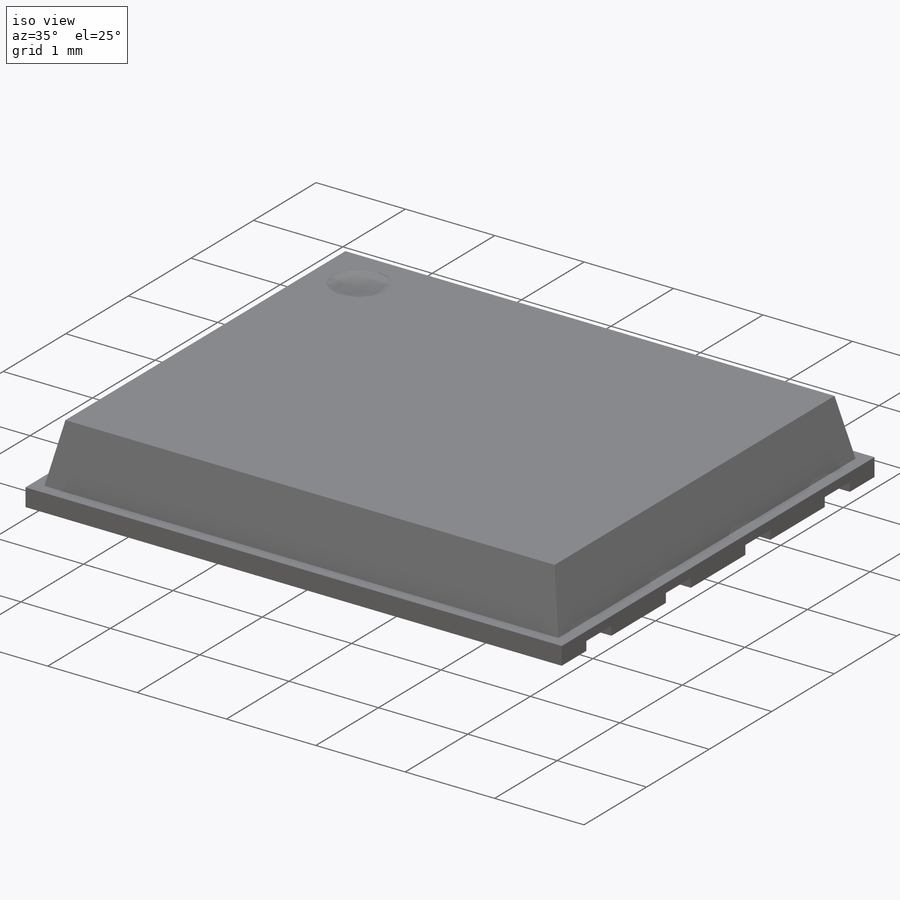
[diagram: iso view]
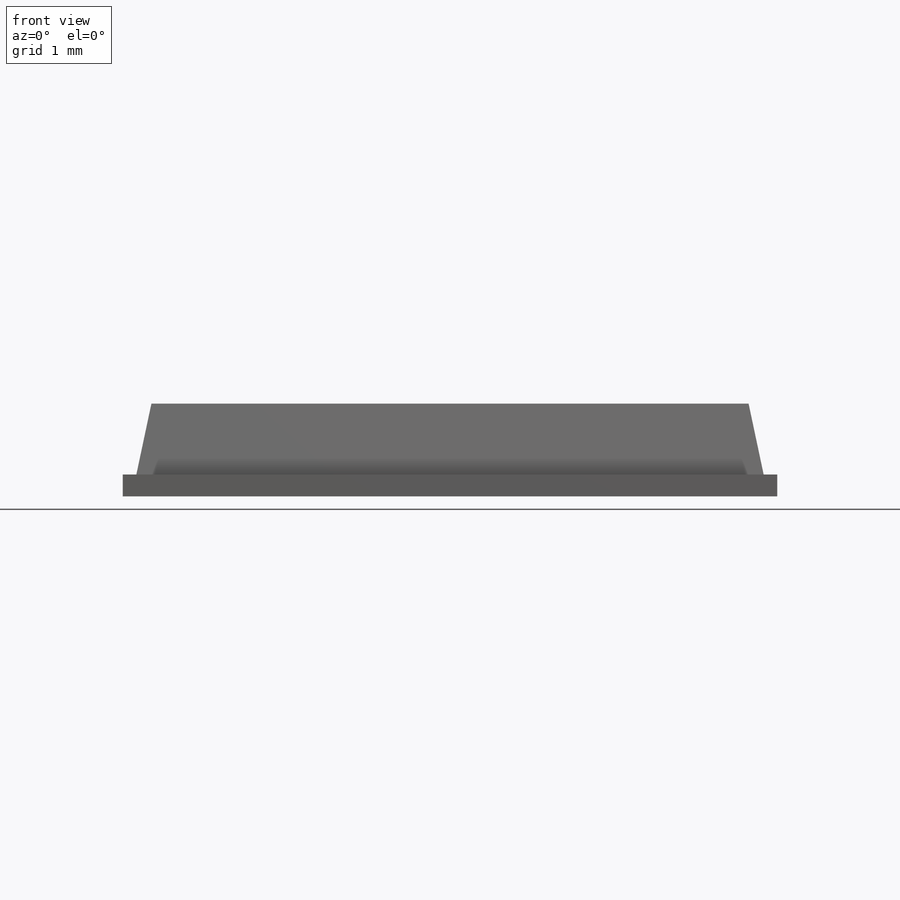
[diagram: front view]
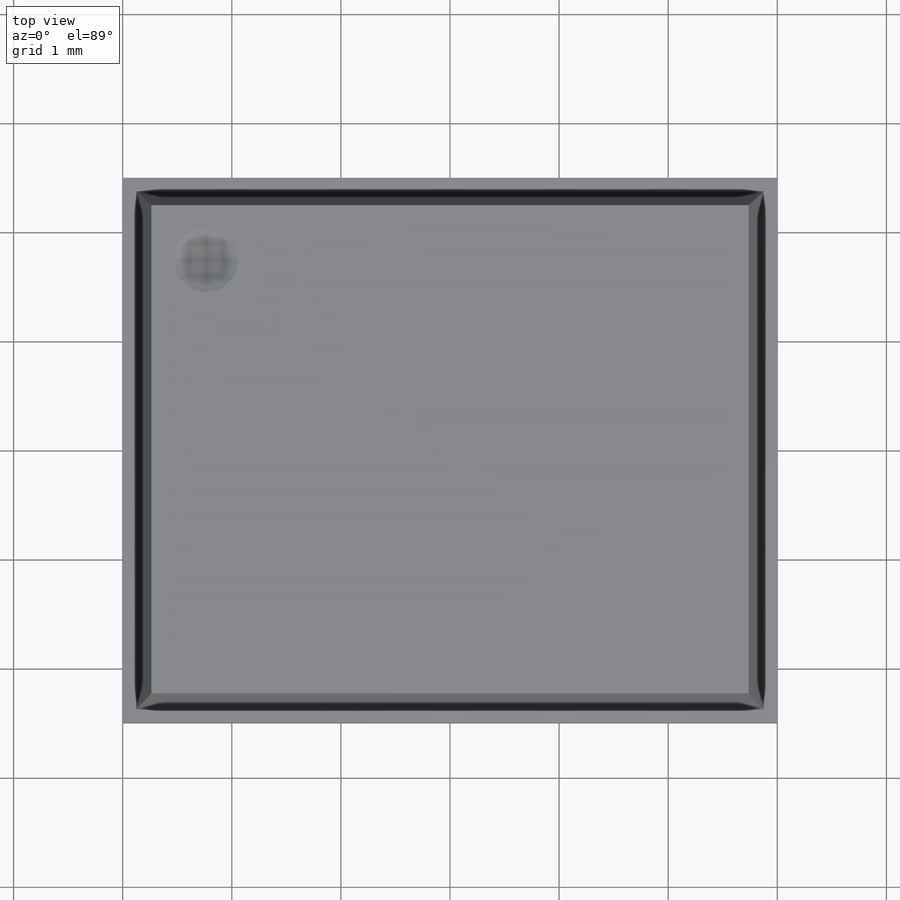
[diagram: top view]
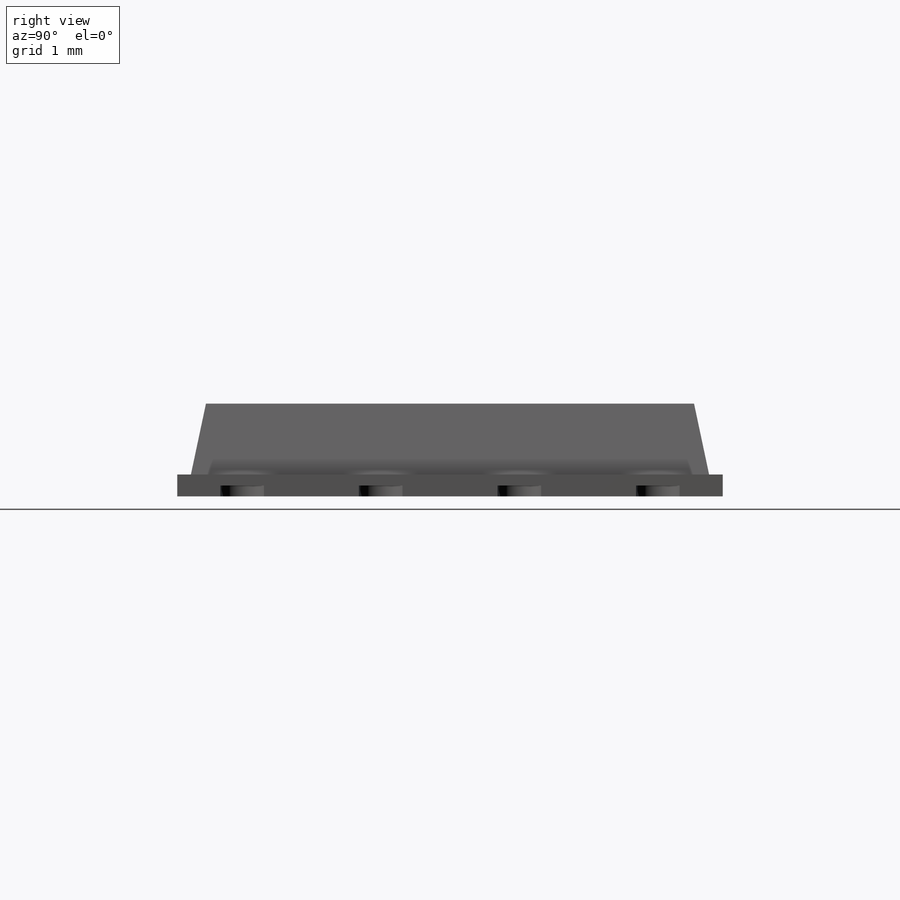
[diagram: right view]
SOLIDWORKS PART (.sldprt)
format: sldprt  version: not decoded by parser v0  size: 247,808 bytes
history: native  units: mm
features: sketch x5, cut_extrude x3, extrude x2, material x1, dome x1, fillet x1, mirror x1 (+11 scaffold rows collapsed)
feature tree (25):
  scaffold x11  (default folders/planes/origin — collapsed)
  material  "Material <not specified>"
  sketch  "Sketch1"  dims[D1=6.0mm D2=5.0mm]
  extrude  "Extrude1"  Depth=0.2mm
  sketch  "Sketch2"  dims[D1=5.75mm D2=4.75mm D3=5.75mm]
  extrude  "Extrude2"  Depth=0.65mm
  sketch  "Sketch3"  dims[D1=0.5mm D2=0.5mm]
  cut_extrude  "Extrude3"  Depth=0.001mm
  dome  "Dome1"
  sketch  "Sketch4"  dims[D1=4.0mm D2=3.4mm]
  cut_extrude  "Extrude4"  Depth=0.1mm
  fillet  "Fillet1"  Radius=0.1mm
  sketch  "Sketch5"  dims[D1=0.6mm D2=0.4mm D3=1.27mm D4=1.27mm]
  cut_extrude  "Extrude5"  Depth=0.1mm
  mirror  "Mirror1"
decode coverage: 11 of 13 modeling features carry decoded parameters
note: suppression state not decoded; provenance and decode notes live in map.json
